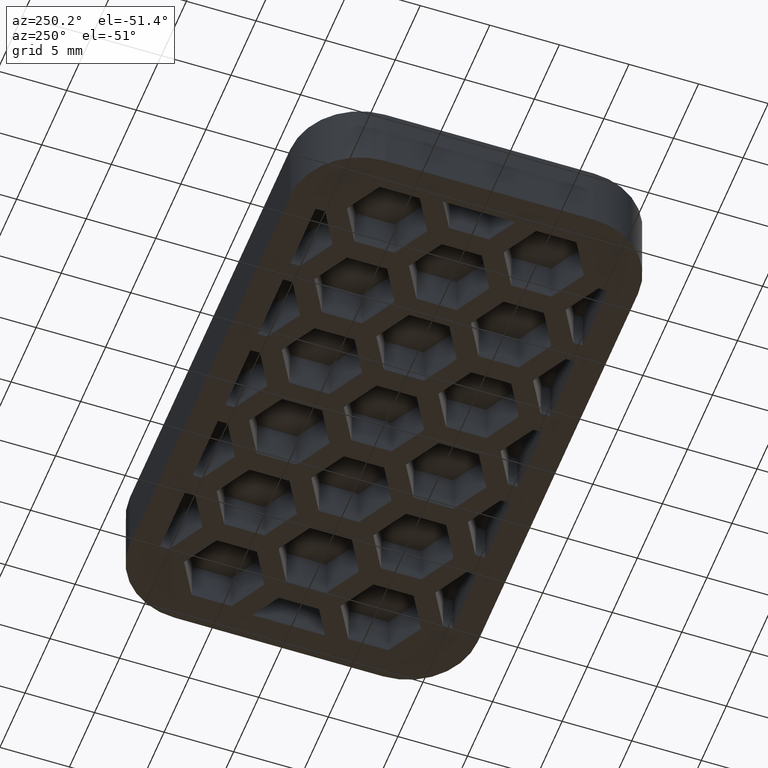
[diagram: clean part render]
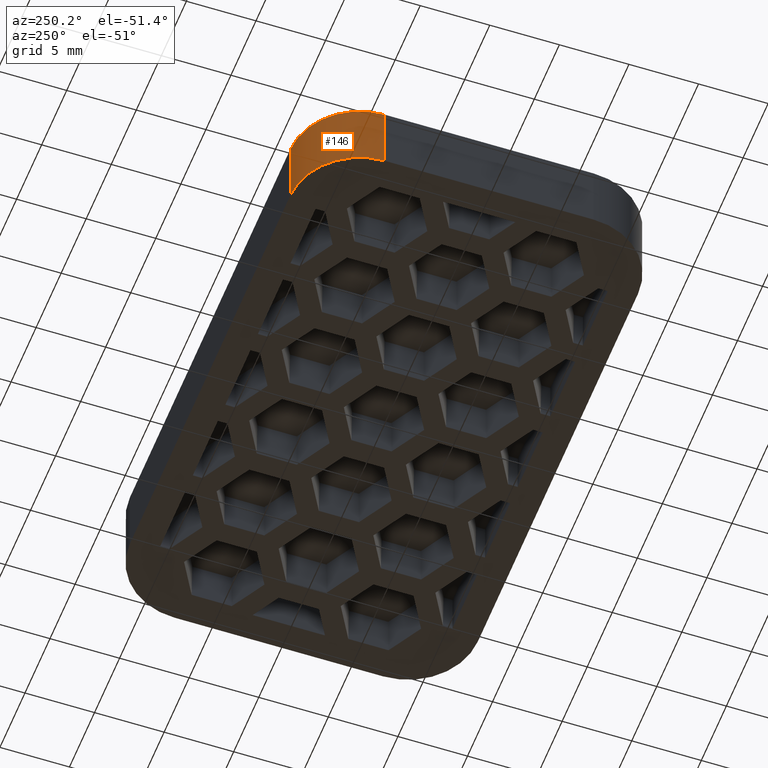
[diagram: same view with one face highlighted and labeled with its STEP entity id]
A machine part, auxiliary view. The second image highlights one B-rep face of the part: STEP entity #146.
In plain terms, the highlighted cylindrical surface (partial cylindrical patch) has radius 5 mm, axis along (-0, 0, 1).
Its self-contained STEP definition (entity closure, byte-faithful):
#146 = ADVANCED_FACE( '', ( #492 ), #493, .T. );
#492 = FACE_OUTER_BOUND( '', #1002, .T. );
#493 = CYLINDRICAL_SURFACE( '', #1003, 5.00000000000000 );
#1002 = EDGE_LOOP( '', ( #2069, #2070, #2071, #2072 ) );
#1003 = AXIS2_PLACEMENT_3D( '', #2073, #2074, #2075 );
#2069 = ORIENTED_EDGE( '', *, *, #3280, .F. );
#2070 = ORIENTED_EDGE( '', *, *, #3660, .F. );
#2071 = ORIENTED_EDGE( '', *, *, #3237, .T. );
#2072 = ORIENTED_EDGE( '', *, *, #3661, .T. );
#2073 = CARTESIAN_POINT( '', ( -16.0000000000000, 7.50000000000001, 78.5181490705396 ) );
#2074 = DIRECTION( '', ( -1.60751816480226E-016, 1.81794180051289E-016, 1.00000000000000 ) );
#2075 = DIRECTION( '', ( -1.00000000000000, -5.90573087550522E-032, -1.60751816480226E-016 ) );
#3237 = EDGE_CURVE( '', #3842, #3843, #3844, .T. );
#3280 = EDGE_CURVE( '', #3927, #3914, #3929, .T. );
#3660 = EDGE_CURVE( '', #3842, #3927, #4648, .T. );
#3661 = EDGE_CURVE( '', #3843, #3914, #4649, .T. );
#3842 = VERTEX_POINT( '', #4841 );
#3843 = VERTEX_POINT( '', #4842 );
#3844 = CIRCLE( '', #4843, 5.00000000000000 );
#3914 = VERTEX_POINT( '', #4943 );
#3927 = VERTEX_POINT( '', #4959 );
#3929 = CIRCLE( '', #4962, 5.00000000000000 );
#4648 = LINE( '', #6056, #6057 );
#4649 = LINE( '', #6058, #6059 );
#4841 = CARTESIAN_POINT( '', ( -21.0000000000000, 7.49999999999999, 4.99999999999999 ) );
#4842 = CARTESIAN_POINT( '', ( -16.0000000000000, 12.5000000000000, 4.99999999999998 ) );
#4843 = AXIS2_PLACEMENT_3D( '', #6385, #6386, #6387 );
#4943 = CARTESIAN_POINT( '', ( -16.0000000000000, 12.5000000000000, -1.46431667789534E-014 ) );
#4959 = CARTESIAN_POINT( '', ( -21.0000000000000, 7.50000000000000, -7.39812128659062E-015 ) );
#4962 = AXIS2_PLACEMENT_3D( '', #6446, #6447, #6448 );
#6056 = CARTESIAN_POINT( '', ( -21.0000000000000, 7.50000000000001, 78.5181490705396 ) );
#6057 = VECTOR( '', #6836, 1000.00000000000 );
#6058 = CARTESIAN_POINT( '', ( -16.0000000000000, 12.5000000000000, 78.5181490705396 ) );
#6059 = VECTOR( '', #6837, 1000.00000000000 );
#6385 = CARTESIAN_POINT( '', ( -16.0000000000000, 7.50000000000000, 4.99999999999999 ) );
#6386 = DIRECTION( '', ( 0.000000000000000, -6.12303176911189E-017, -1.00000000000000 ) );
#6387 = DIRECTION( '', ( 0.000000000000000, 1.00000000000000, -6.12303176911189E-017 ) );
#6446 = CARTESIAN_POINT( '', ( -16.0000000000000, 7.50000000000000, -1.43370151904978E-014 ) );
#6447 = DIRECTION( '', ( 0.000000000000000, -6.12303176911189E-017, -1.00000000000000 ) );
#6448 = DIRECTION( '', ( 0.000000000000000, 1.00000000000000, -6.12303176911189E-017 ) );
#6836 = DIRECTION( '', ( 1.60751816480226E-016, -1.81794180051289E-016, -1.00000000000000 ) );
#6837 = DIRECTION( '', ( 1.60751816480226E-016, -1.81794180051289E-016, -1.00000000000000 ) );